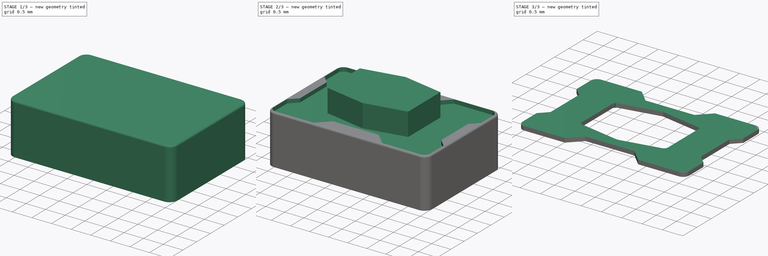
[diagram: build sequence overview — one tinted view per stage of 3, left to right]
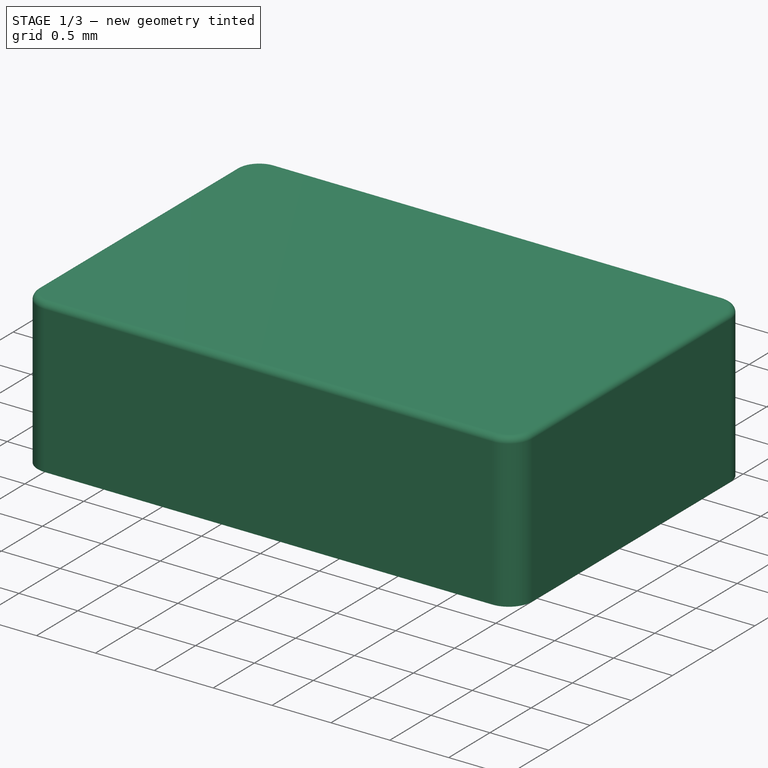
[diagram: stage 1 of 3 — iso view after this stage's code; geometry added in this stage tinted green]
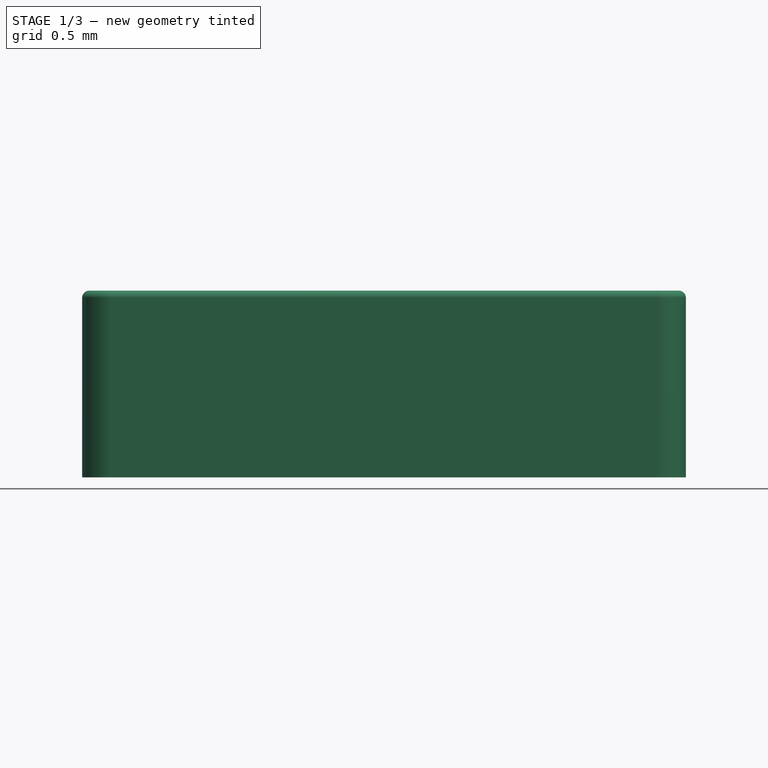
[diagram: stage 1 of 3 — front view after this stage's code; geometry added in this stage tinted green]
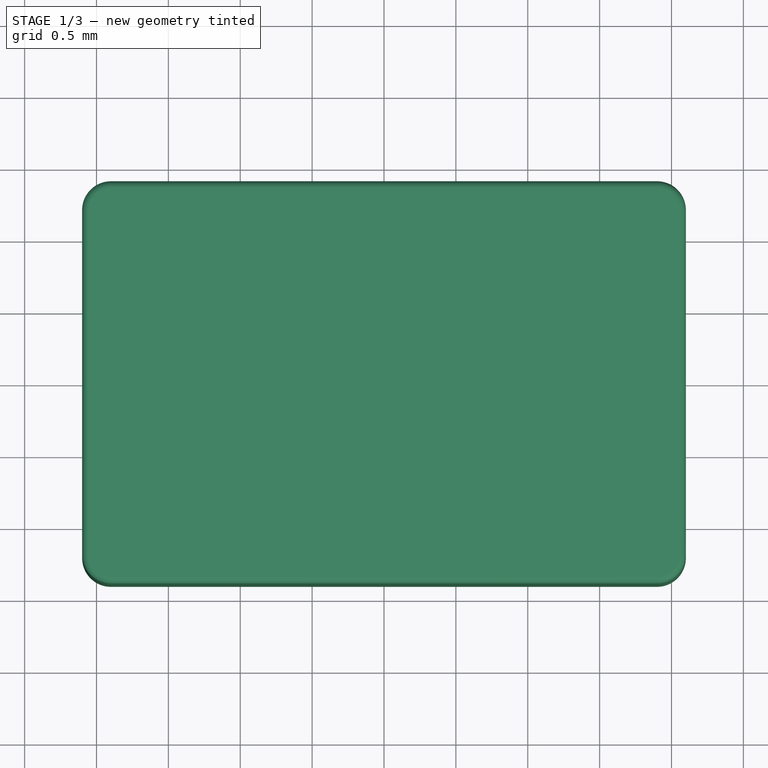
[diagram: stage 1 of 3 — top view after this stage's code; geometry added in this stage tinted green]
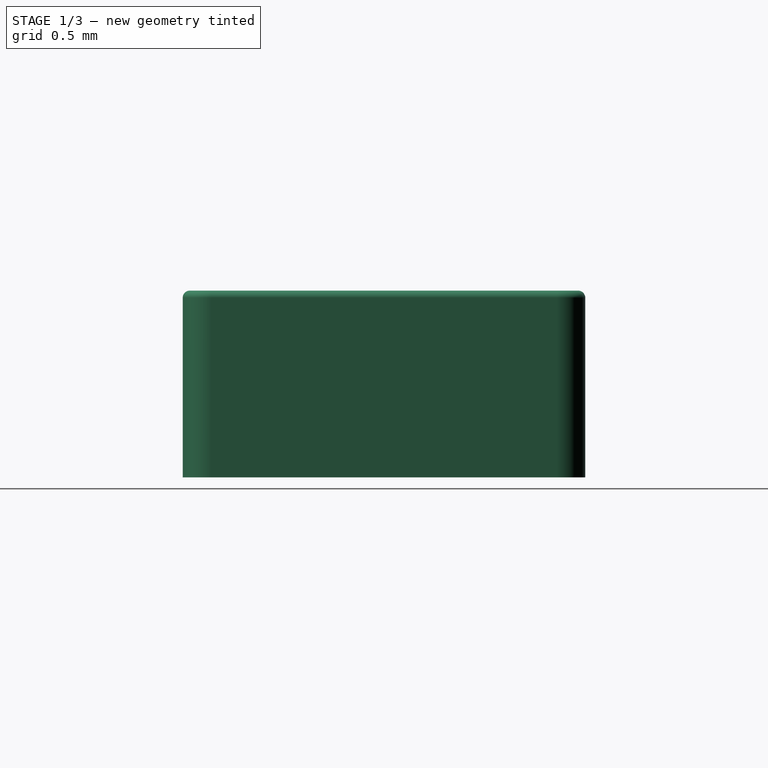
[diagram: stage 1 of 3 — right view after this stage's code; geometry added in this stage tinted green]
FCSTD DOCUMENT  (FreeCAD 0.21R33771 (Git))
Label: pulsador
License: All rights reserved
LicenseURL: https://en.wikipedia.org/wiki/All_rights_reserved
objects: Sketcher::SketchObject×5, PartDesign::Pad×4, PartDesign::Body×3, PartDesign::Fillet×3, PartDesign::SubShapeBinder×2, PartDesign::Pocket×1, App::Part×1
note: 26 computed .brp shape members not serialized (recipe doc carries the construction recipe); baked Part::Feature solids carry a one-line shape summary decoded from their .brp

FEATURE [Sketcher::SketchObject] Sketch
  FullyConstrained = true
  MapMode = 5
  Support = -> [XY_Plane]
  sketch-geometry (12):
    g0: LineSegment StartX=2.3 StartY=1.1 StartZ=0 EndX=2.3 EndY=0.5 EndZ=0
    g1: LineSegment StartX=2.3 StartY=0.5 StartZ=0 EndX=1.7 EndY=0.5 EndZ=0
    g2: LineSegment StartX=1.7 StartY=0.5 StartZ=0 EndX=1.7 EndY=-0.5 EndZ=0
    g3: LineSegment StartX=1.7 StartY=-0.5 StartZ=0 EndX=2.3 EndY=-0.5 EndZ=0
    g4: LineSegment StartX=2.3 StartY=-0.5 StartZ=0 EndX=2.3 EndY=-1.1 EndZ=0
    g5: LineSegment StartX=2.3 StartY=1.1 StartZ=0 EndX=-2.3 EndY=1.1 EndZ=0
    g6: LineSegment StartX=2.3 StartY=-1.1 StartZ=0 EndX=-2.3 EndY=-1.1 EndZ=0
    g7: LineSegment StartX=-2.3 StartY=-1.1 StartZ=0 EndX=-2.3 EndY=-0.5 EndZ=0
    g8: LineSegment StartX=-2.3 StartY=-0.5 StartZ=0 EndX=-1.7 EndY=-0.5 EndZ=0
    g9: LineSegment StartX=-1.7 StartY=-0.5 StartZ=0 EndX=-1.7 EndY=0.5 EndZ=0
    g10: LineSegment StartX=-1.7 StartY=0.5 StartZ=0 EndX=-2.3 EndY=0.5 EndZ=0
    g11: LineSegment StartX=-2.3 StartY=0.5 StartZ=0 EndX=-2.3 EndY=1.1 EndZ=0
  constraints (36):
    c: Vertical(g0)
    c: DistanceY(g0,g0) = 0.6
    c: Coincident(g1,g0)
    c: Horizontal(g1)
    c: Coincident(g2,g1)
    c: Vertical(g2)
    c: Coincident(g3,g2)
    c: Horizontal(g3)
    c: Coincident(g4,g3)
    c: Vertical(g4)
    c: DistanceY(g4,g4) = 0.6
    c: DistanceY(g4,g0) = 2.2
    c: Coincident(g5,g0)
    c: Horizontal(g5)
    c: Coincident(g6,g4)
    c: Horizontal(g6)
    c: Coincident(g7,g6)
    c: Vertical(g7)
    c: Coincident(g8,g7)
    c: Horizontal(g8)
    c: Coincident(g9,g8)
    c: Coincident(g10,g9)
    c: Coincident(g11,g10)
    c: Coincident(g11,g5)
    c: Horizontal(g10)
    c: Vertical(g11)
    c: Vertical(g9)
    c: DistanceY(g8,g2) = 0
    c: DistanceY(g9,g1) = 0
    c: DistanceX(g5,g0) = 4.6
    c: Equal(g5,g6)
    c: DistanceX(g5,g6) = 0
    c: DistanceX(g10,g10) = 0.6
    c: DistanceX(g1,g1) = 0.6
    c: DistanceX(g-1,g0) = 2.3
    c: DistanceY(g-1,g0) = 1.1
FEATURE [PartDesign::Pad] Pad
  Direction = (0,0,1)
  Length = 0.1
  Length2 = 10
  Profile = -> Sketch
  ReferenceAxis = -> Sketch [N_Axis]
  Type = 0
FEATURE [PartDesign::Body] Body
  Group = -> [Sketch,Pad]
  Origin = -> Origin
  Tip = -> Pad
FEATURE [PartDesign::SubShapeBinder] Binder
  BindCopyOnChange = 0
  BindMode = 0
  ClaimChildren = false
  Context = -> Body001 [Binder.]
  Fuse = false
  MakeFace = true
  OffsetFill = false
  OffsetIntersection = false
  OffsetJoinType = 0
  OffsetOpenResult = false
  PartialLoad = false
  Relative = true
  Support = -> [Body]
  _Version = 2
FEATURE [Sketcher::SketchObject] Sketch001
  FullyConstrained = true
  MapMode = 5
  Placement = pos=(0,0,0.1) rot=(0,0,1;0rad)
  Support = -> [Binder]
  sketch-geometry (10):
    g0: ArcOfCircle CenterX=-1.9 CenterY=1.2 CenterZ=0 NormalX=0 NormalY=0 NormalZ=1 AngleXU=0 Radius=0.2 StartAngle=1.5708 EndAngle=3.14159
    g1: LineSegment StartX=-1.9 StartY=1.4 StartZ=0 EndX=1.9 EndY=1.4 EndZ=0
    g2: ArcOfCircle CenterX=1.9 CenterY=1.2 CenterZ=0 NormalX=0 NormalY=0 NormalZ=1 AngleXU=0 Radius=0.2 StartAngle=0 EndAngle=1.5708
    g3: LineSegment StartX=2.1 StartY=1.2 StartZ=0 EndX=2.1 EndY=-1.2 EndZ=0
    g4: ArcOfCircle CenterX=1.9 CenterY=-1.2 CenterZ=0 NormalX=0 NormalY=0 NormalZ=1 AngleXU=0 Radius=0.2 StartAngle=4.71239 EndAngle=6.28319
    g5: LineSegment StartX=1.9 StartY=-1.4 StartZ=0 EndX=-1.9 EndY=-1.4 EndZ=0
    g6: ArcOfCircle CenterX=-1.9 CenterY=-1.2 CenterZ=0 NormalX=0 NormalY=0 NormalZ=1 AngleXU=0 Radius=0.2 StartAngle=3.14159 EndAngle=4.71239
    g7: LineSegment StartX=-2.1 StartY=-1.2 StartZ=0 EndX=-2.1 EndY=1.2 EndZ=0
    g8: GeomPoint X=-2.1 Y=1.4 Z=0
    g9: GeomPoint X=2.1 Y=-1.4 Z=0
  constraints (24):
    c: Tangent(g0,g1) = 1.5708
    c: Tangent(g1,g2) = 1.5708
    c: Tangent(g2,g3) = 1.5708
    c: Tangent(g3,g4) = 1.5708
    c: Tangent(g4,g5) = 1.5708
    c: Tangent(g5,g6) = 1.5708
    c: Tangent(g6,g7) = 1.5708
    c: Tangent(g7,g0) = 1.5708
    c: Horizontal(g1)
    c: Horizontal(g5)
    c: Vertical(g3)
    c: Vertical(g7)
    c: Equal(g0,g2)
    c: Equal(g2,g4)
    c: Equal(g4,g6)
    c: PointOnObject(g8,g1)
    c: PointOnObject(g8,g7)
    c: PointOnObject(g9,g3)
    c: PointOnObject(g9,g5)
    c: DistanceX(g0,g2) = 4.2
    c: DistanceX(g-1,g2) = 2.1
    c: Radius(g0) = 0.2
    c: DistanceY(g4,g1) = 2.8
    c: DistanceY(g-1,g1) = 1.4
FEATURE [PartDesign::Pad] Pad001
  Direction = (0,0,1)
  Length = 1.3
  Length2 = 10
  Profile = -> Sketch001
  ReferenceAxis = -> Sketch001 [N_Axis]
  Type = 0
FEATURE [PartDesign::Fillet] Fillet
  Base = -> Pad001 [Edge13]
  BaseFeature = -> Pad001
  Radius = 0.05
  SupportTransform = false
  UseAllEdges = false
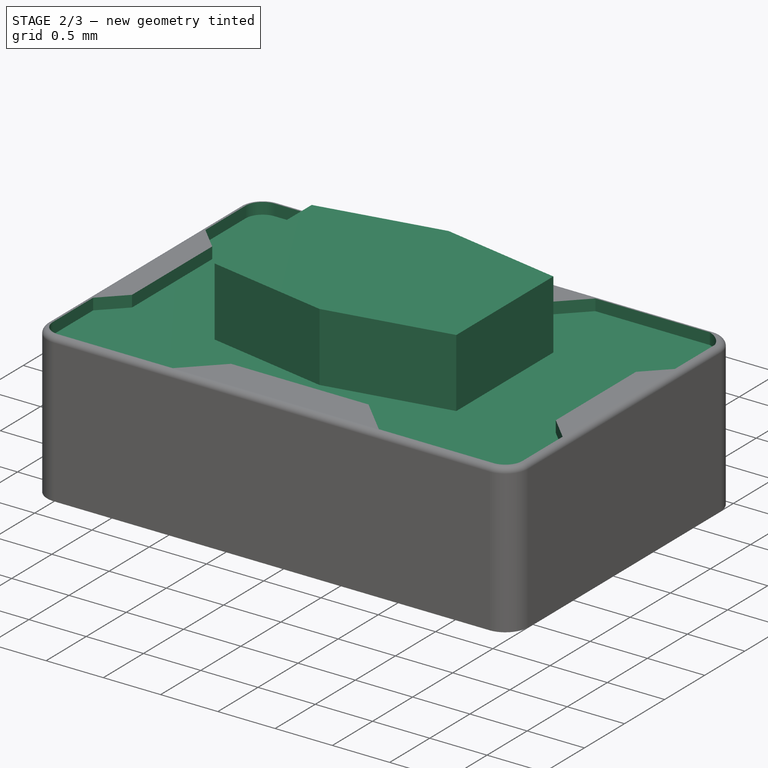
[diagram: stage 2 of 3 — iso view after this stage's code; geometry added in this stage tinted green]
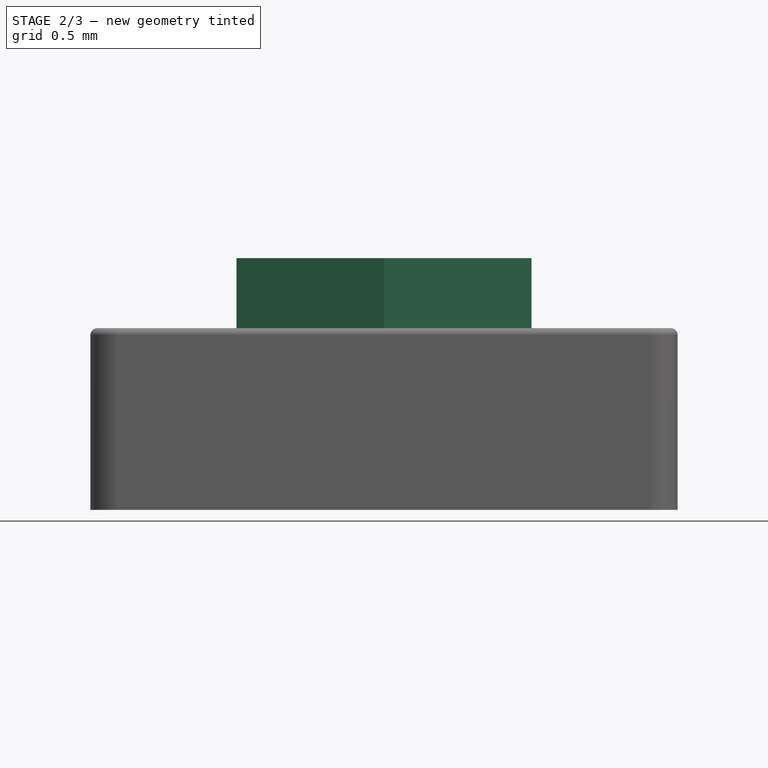
[diagram: stage 2 of 3 — front view after this stage's code; geometry added in this stage tinted green]
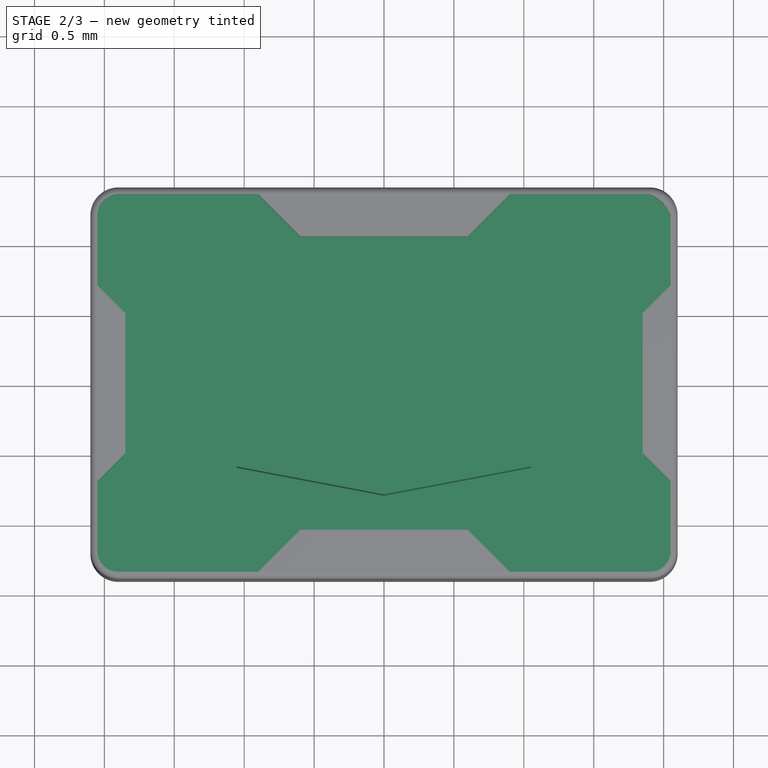
[diagram: stage 2 of 3 — top view after this stage's code; geometry added in this stage tinted green]
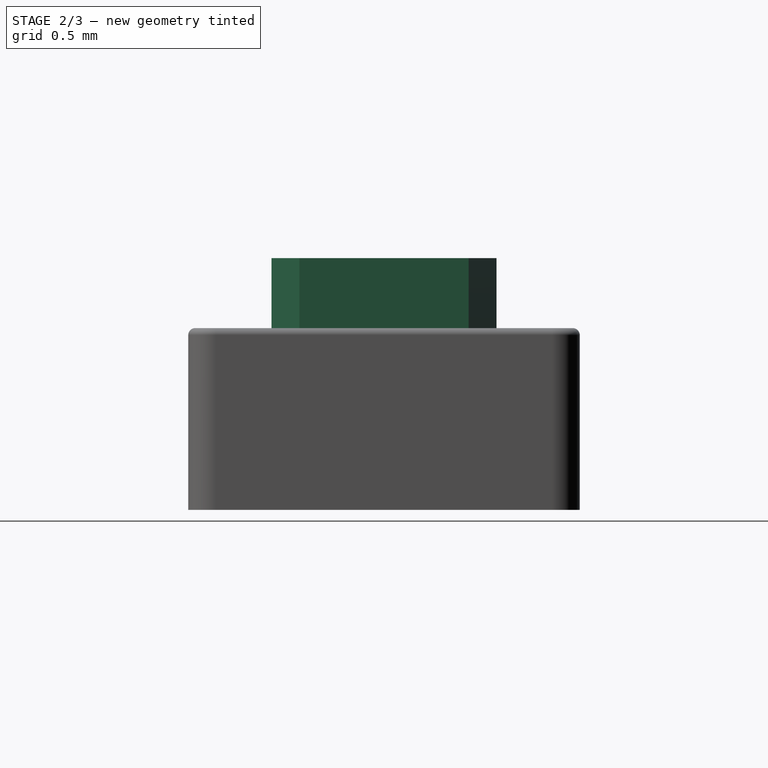
[diagram: stage 2 of 3 — right view after this stage's code; geometry added in this stage tinted green]
FEATURE [Sketcher::SketchObject] Sketch002
  ExternalGeometry = -> [Fillet]
  FullyConstrained = false
  MapMode = 5
  Placement = pos=(0,0,1.4) rot=(0,0,1;0rad)
  Support = -> [Fillet]
  sketch-geometry (24):
    g0: LineSegment StartX=-1.9 StartY=1.35 StartZ=0 EndX=-0.9 EndY=1.35 EndZ=0
    g1: LineSegment StartX=1.9 StartY=1.35 StartZ=0 EndX=0.9 EndY=1.35 EndZ=0
    g2: LineSegment StartX=-1.9 StartY=-1.35 StartZ=0 EndX=-0.9 EndY=-1.35 EndZ=0
    g3: LineSegment StartX=1.9 StartY=-1.35 StartZ=0 EndX=0.9 EndY=-1.35 EndZ=0
    g4: LineSegment StartX=2.05 StartY=1.2 StartZ=0 EndX=2.05 EndY=0.7 EndZ=0
    g5: LineSegment StartX=2.05 StartY=-1.2 StartZ=0 EndX=2.05 EndY=-0.7 EndZ=0
    g6: LineSegment StartX=-2.05 StartY=1.2 StartZ=0 EndX=-2.05 EndY=0.7 EndZ=0
    g7: LineSegment StartX=-2.05 StartY=-1.2 StartZ=0 EndX=-2.05 EndY=-0.7 EndZ=0
    g8: LineSegment StartX=-1.85 StartY=0.5 StartZ=0 EndX=-1.85 EndY=-0.5 EndZ=0
    g9: LineSegment StartX=1.85 StartY=0.5 StartZ=0 EndX=1.85 EndY=-0.5 EndZ=0
    g10: LineSegment StartX=1.85 StartY=-0.5 StartZ=0 EndX=2.05 EndY=-0.7 EndZ=0
    g11: LineSegment StartX=1.85 StartY=0.5 StartZ=0 EndX=2.05 EndY=0.7 EndZ=0
    g12: LineSegment StartX=0.9 StartY=1.35 StartZ=0 EndX=0.6 EndY=1.05 EndZ=0
    g13: LineSegment StartX=0.6 StartY=1.05 StartZ=0 EndX=-0.6 EndY=1.05 EndZ=0
    g14: LineSegment StartX=-0.9 StartY=1.35 StartZ=0 EndX=-0.6 EndY=1.05 EndZ=0
    g15: LineSegment StartX=-2.05 StartY=0.7 StartZ=0 EndX=-1.85 EndY=0.5 EndZ=0
    g16: LineSegment StartX=-2.05 StartY=-0.7 StartZ=0 EndX=-1.85 EndY=-0.5 EndZ=0
    g17: LineSegment StartX=-0.9 StartY=-1.35 StartZ=0 EndX=-0.6 EndY=-1.05 EndZ=0
    g18: LineSegment StartX=-0.6 StartY=-1.05 StartZ=0 EndX=0.6 EndY=-1.05 EndZ=0
    g19: LineSegment StartX=0.6 StartY=-1.05 StartZ=0 EndX=0.9 EndY=-1.35 EndZ=0
    g20: ArcOfCircle CenterX=-1.9 CenterY=1.2 CenterZ=0 NormalX=0 NormalY=0 NormalZ=1 AngleXU=0 Radius=0.15 StartAngle=1.5708 EndAngle=3.14159
    g21: ArcOfCircle CenterX=1.81021 CenterY=1.11021 CenterZ=0 NormalX=0 NormalY=0 NormalZ=1 AngleXU=0 Radius=0.256053 StartAngle=0.358296 EndAngle=1.2125
    g22: ArcOfCircle CenterX=1.9 CenterY=-1.2 CenterZ=0 NormalX=0 NormalY=0 NormalZ=1 AngleXU=0 Radius=0.15 StartAngle=4.71239 EndAngle=6.28319
    g23: ArcOfCircle CenterX=-1.9 CenterY=-1.2 CenterZ=0 NormalX=0 NormalY=0 NormalZ=1 AngleXU=0 Radius=0.15 StartAngle=3.14159 EndAngle=4.71239
  constraints (65):
    c: Coincident(g0,g-3)
    c: Horizontal(g0)
    c: Coincident(g1,g-3)
    c: Horizontal(g1)
    c: Coincident(g2,g-8)
    c: Horizontal(g2)
    c: Coincident(g3,g-7)
    c: Horizontal(g3)
    c: Coincident(g4,g-4)
    c: Vertical(g4)
    c: Coincident(g5,g-6)
    c: Vertical(g5)
    c: Coincident(g6,g-5)
    c: Vertical(g6)
    c: Coincident(g7,g-8)
    c: Vertical(g8)
    c: Vertical(g9)
    c: Coincident(g10,g9)
    c: Coincident(g10,g5)
    c: Coincident(g11,g9)
    c: Coincident(g11,g4)
    c: Coincident(g12,g1)
    c: Coincident(g13,g12)
    c: Horizontal(g13)
    c: Coincident(g14,g0)
    c: Coincident(g14,g13)
    c: Coincident(g15,g6)
    c: Coincident(g15,g8)
    c: Coincident(g16,g7)
    c: Coincident(g16,g8)
    c: Coincident(g17,g2)
    c: Coincident(g18,g17)
    c: Horizontal(g18)
    c: Coincident(g19,g18)
    c: Coincident(g19,g3)
    c: Coincident(g20,g0)
    c: Coincident(g20,g6)
    c: Coincident(g21,g1)
    c: Coincident(g21,g4)
    c: Coincident(g22,g-6)
    c: Coincident(g22,g5)
    c: Coincident(g23,g-8)
    c: Coincident(g23,g7)
    c: Coincident(g23,g2)
    c: DistanceX(g0,g0) = 1
    c: Equal(g0,g1)
    c: Equal(g0,g2)
    c: Equal(g0,g3)
    c: DistanceY(g6,g6) = 0.5
    c: Equal(g6,g4)
    c: Equal(g6,g7)
    c: Equal(g6,g5)
    c: Vertical(g7)
    c: DistanceX(g13,g13) = 1.2
    c: Equal(g13,g18)
    c: DistanceX(g0,g13) = 0.3
    c: DistanceY(g13,g0) = 0.3
    c: DistanceX(g2,g17) = 0.3
    c: DistanceY(g2,g17) = 0.3
    c: DistanceY(g8,g8) = 1
    c: DistanceY(g7,g8) = 0.2
    c: DistanceX(g7,g8) = 0.2
    c: DistanceY(g9,g9) = 1
    c: DistanceX(g9,g4) = 0.2
    c: DistanceY(g9,g4) = 0.2
FEATURE [PartDesign::Pocket] Pocket
  BaseFeature = -> Fillet
  Direction = (0,0,-1)
  Length = 0.1
  Length2 = 5
  Profile = -> Sketch002
  ReferenceAxis = -> Sketch002 [N_Axis]
  Type = 0
FEATURE [PartDesign::Body] Body002
  Group = -> [Binder001,Sketch003,Pad002,Fillet001]
  Origin = -> Origin002
  Tip = -> Fillet001
FEATURE [Sketcher::SketchObject] Sketch004
  FullyConstrained = true
  MapMode = 5
  Placement = pos=(0,0,1.3) rot=(0,0,1;0rad)
  Support = -> [Pocket]
  sketch-geometry (6):
    g0: LineSegment StartX=-1.055 StartY=0.605 StartZ=0 EndX=-1.055 EndY=-0.605 EndZ=0
    g1: LineSegment StartX=-1.055 StartY=-0.605 StartZ=0 EndX=0 EndY=-0.805 EndZ=0
    g2: LineSegment StartX=0 StartY=-0.805 StartZ=0 EndX=1.055 EndY=-0.605 EndZ=0
    g3: LineSegment StartX=1.055 StartY=-0.605 StartZ=0 EndX=1.055 EndY=0.605 EndZ=0
    g4: LineSegment StartX=1.055 StartY=0.605 StartZ=0 EndX=0 EndY=0.805 EndZ=0
    g5: LineSegment StartX=0 StartY=0.805 StartZ=0 EndX=-1.055 EndY=0.605 EndZ=0
  constraints (18):
    c: Vertical(g0)
    c: Coincident(g1,g0)
    c: PointOnObject(g1,g-2)
    c: Coincident(g2,g1)
    c: Coincident(g3,g2)
    c: Vertical(g3)
    c: Coincident(g4,g3)
    c: PointOnObject(g4,g-2)
    c: Coincident(g5,g4)
    c: Coincident(g5,g0)
    c: DistanceY(g1,g4) = 1.61
    c: DistanceX(g0,g2) = 2.11
    c: DistanceX(g1,g2) = 1.055
    c: DistanceY(g3,g4) = 0.2
    c: DistanceY(g0,g4) = 0.2
    c: DistanceY(g1,g2) = 0.2
    c: DistanceY(g1,g0) = 0.2
    c: DistanceY(g-1,g4) = 0.805
FEATURE [PartDesign::Pad] Pad003
  BaseFeature = -> Pocket
  Direction = (0,0,1)
  Length = 0.6
  Length2 = 10
  Profile = -> Sketch004
  ReferenceAxis = -> Sketch004 [N_Axis]
  Type = 0
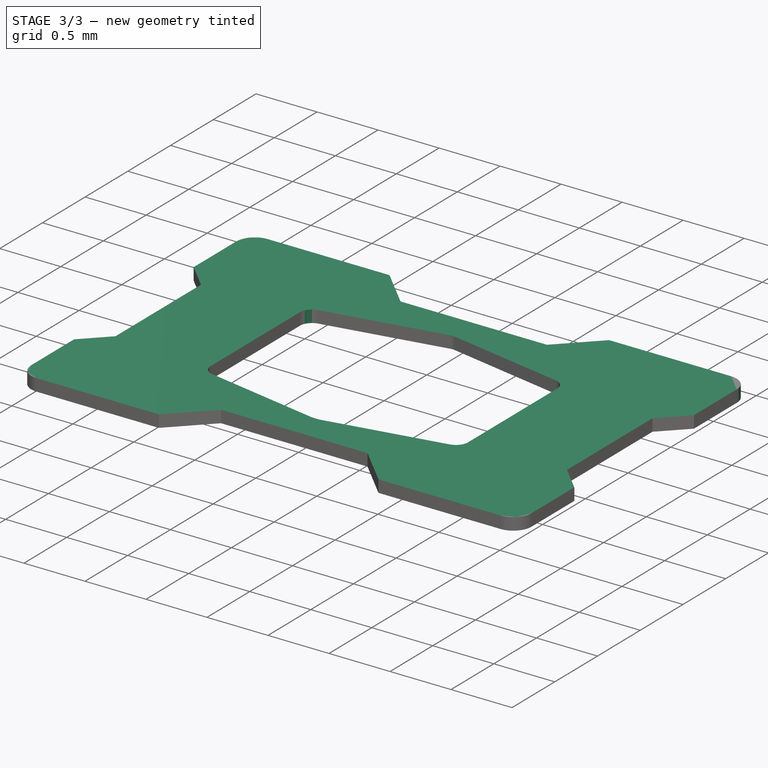
[diagram: stage 3 of 3 — iso view after this stage's code; geometry added in this stage tinted green]
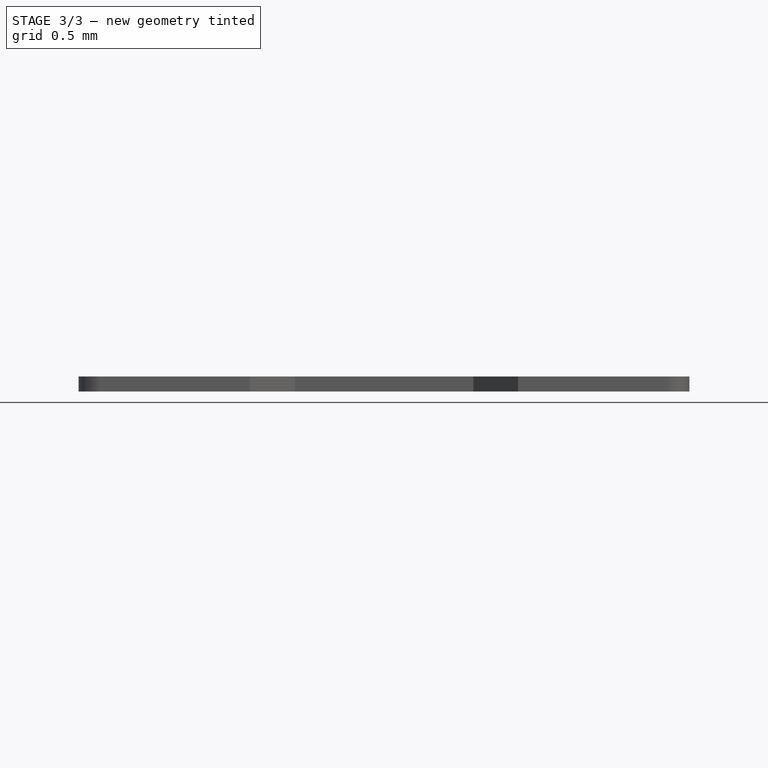
[diagram: stage 3 of 3 — front view after this stage's code; geometry added in this stage tinted green]
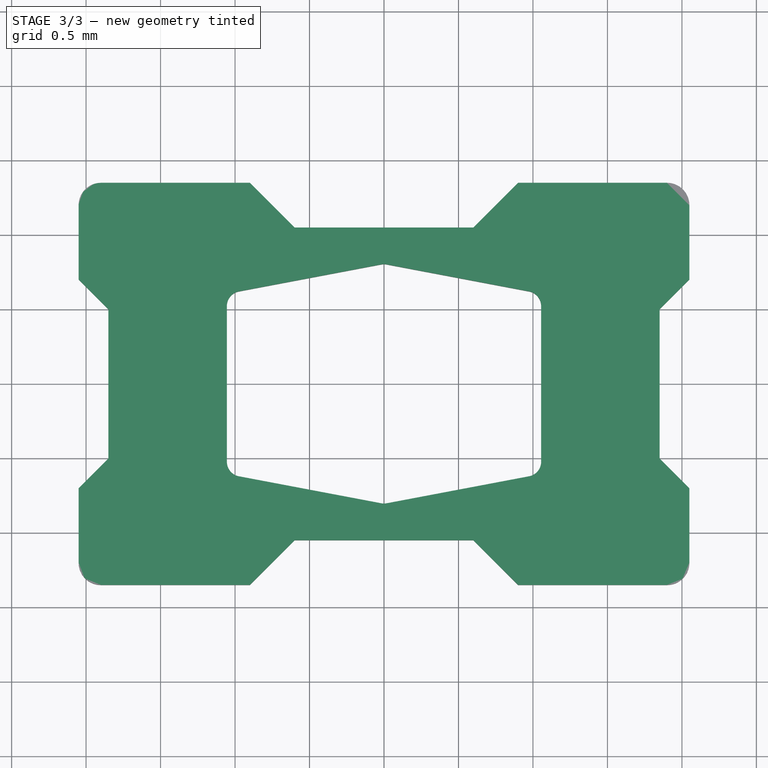
[diagram: stage 3 of 3 — top view after this stage's code; geometry added in this stage tinted green]
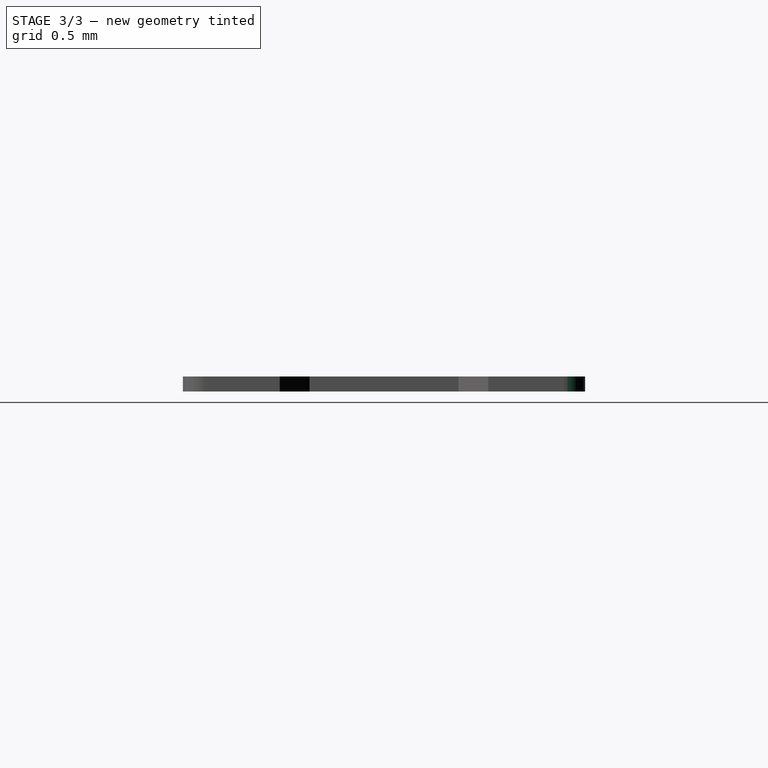
[diagram: stage 3 of 3 — right view after this stage's code; geometry added in this stage tinted green]
FEATURE [PartDesign::SubShapeBinder] Binder001
  BindCopyOnChange = 0
  BindMode = 0
  ClaimChildren = false
  Context = -> Body002 [Binder001.]
  Fuse = false
  MakeFace = true
  OffsetFill = false
  OffsetIntersection = false
  OffsetJoinType = 0
  OffsetOpenResult = false
  PartialLoad = false
  Relative = true
  Support = -> [Body001]
  _Version = 2
FEATURE [Sketcher::SketchObject] Sketch003
  ExternalGeometry = -> [Binder001]
  FullyConstrained = false
  MapMode = 5
  Placement = pos=(0,1.35,0) rot=(1,0,0;1.5708rad)
  Support = -> [Binder001]
  sketch-geometry (30):
    g0: LineSegment StartX=-0.6 StartY=1.05 StartZ=0 EndX=0.6 EndY=1.05 EndZ=0
    g1: LineSegment StartX=0.6 StartY=1.05 StartZ=0 EndX=0.9 EndY=1.35 EndZ=0
    g2: LineSegment StartX=0.9 StartY=1.35 StartZ=0 EndX=1.9 EndY=1.35 EndZ=0
    g3: LineSegment StartX=2.05 StartY=1.2 StartZ=0 EndX=2.05 EndY=0.7 EndZ=0
    g4: LineSegment StartX=2.05 StartY=0.7 StartZ=0 EndX=1.85 EndY=0.5 EndZ=0
    g5: LineSegment StartX=1.85 StartY=0.5 StartZ=0 EndX=1.85 EndY=-0.5 EndZ=0
    g6: LineSegment StartX=1.85 StartY=-0.5 StartZ=0 EndX=2.05 EndY=-0.7 EndZ=0
    g7: LineSegment StartX=2.05 StartY=-0.7 StartZ=0 EndX=2.05 EndY=-1.2 EndZ=0
    g8: LineSegment StartX=1.9 StartY=-1.35 StartZ=0 EndX=0.9 EndY=-1.35 EndZ=0
    g9: LineSegment StartX=0.9 StartY=-1.35 StartZ=0 EndX=0.6 EndY=-1.05 EndZ=0
    g10: LineSegment StartX=0.6 StartY=-1.05 StartZ=0 EndX=-0.6 EndY=-1.05 EndZ=0
    g11: LineSegment StartX=-0.6 StartY=-1.05 StartZ=0 EndX=-0.9 EndY=-1.35 EndZ=0
    g12: LineSegment StartX=-0.9 StartY=-1.35 StartZ=0 EndX=-1.9 EndY=-1.35 EndZ=0
    g13: LineSegment StartX=-2.05 StartY=-1.2 StartZ=0 EndX=-2.05 EndY=-0.7 EndZ=0
    g14: LineSegment StartX=-2.05 StartY=-0.7 StartZ=0 EndX=-1.85 EndY=-0.5 EndZ=0
    g15: LineSegment StartX=-1.85 StartY=-0.5 StartZ=0 EndX=-1.85 EndY=0.5 EndZ=0
    g16: LineSegment StartX=-1.85 StartY=0.5 StartZ=0 EndX=-2.05 EndY=0.7 EndZ=0
    g17: LineSegment StartX=-2.05 StartY=0.7 StartZ=0 EndX=-2.05 EndY=1.2 EndZ=0
    g18: ArcOfCircle CenterX=-1.9 CenterY=1.2 CenterZ=0 NormalX=0 NormalY=0 NormalZ=1 AngleXU=0 Radius=0.15 StartAngle=1.5708 EndAngle=3.14159
    g19: ArcOfCircle CenterX=1.9 CenterY=1.2 CenterZ=0 NormalX=0 NormalY=0 NormalZ=1 AngleXU=0 Radius=0.15 StartAngle=0 EndAngle=1.5708
    g20: ArcOfCircle CenterX=1.9 CenterY=-1.2 CenterZ=0 NormalX=0 NormalY=0 NormalZ=1 AngleXU=0 Radius=0.15 StartAngle=4.71239 EndAngle=6.28319
    g21: ArcOfCircle CenterX=-1.9 CenterY=-1.2 CenterZ=0 NormalX=0 NormalY=0 NormalZ=1 AngleXU=0 Radius=0.15 StartAngle=3.14159 EndAngle=4.71239
    g22: LineSegment StartX=-1.9 StartY=1.35 StartZ=0 EndX=-0.9 EndY=1.35 EndZ=0
    g23: LineSegment StartX=-0.9 StartY=1.35 StartZ=0 EndX=-0.6 EndY=1.05 EndZ=0
    g24: LineSegment StartX=-1.055 StartY=0.605 StartZ=0 EndX=-1.055 EndY=-0.605 EndZ=0
    g25: LineSegment StartX=-1.055 StartY=-0.605 StartZ=0 EndX=0 EndY=-0.805 EndZ=0
    g26: LineSegment StartX=0 StartY=-0.805 StartZ=0 EndX=1.055 EndY=-0.605 EndZ=0
    g27: LineSegment StartX=1.055 StartY=-0.605 StartZ=0 EndX=1.055 EndY=0.605 EndZ=0
    g28: LineSegment StartX=1.055 StartY=0.605 StartZ=0 EndX=0 EndY=0.805 EndZ=0
    g29: LineSegment StartX=0 StartY=0.805 StartZ=0 EndX=-1.055 EndY=0.605 EndZ=0
  constraints (69):
    c: Coincident(g0,g-25)
    c: Coincident(g0,g-4)
    c: Coincident(g1,g0)
    c: Coincident(g1,g-5)
    c: Coincident(g2,g1)
    c: Coincident(g2,g-5)
    c: Coincident(g3,g-6)
    c: Coincident(g3,g-7)
    c: Coincident(g4,g3)
    c: Coincident(g4,g-8)
    c: Coincident(g5,g4)
    c: Coincident(g5,g-9)
    c: Coincident(g6,g5)
    c: Coincident(g6,g-10)
    c: Coincident(g7,g6)
    c: Coincident(g7,g-11)
    c: Coincident(g8,g-12)
    c: Coincident(g8,g-13)
    c: Coincident(g9,g8)
    c: Coincident(g9,g-14)
    c: Coincident(g10,g9)
    c: Coincident(g10,g-15)
    c: Coincident(g11,g10)
    c: Coincident(g11,g-16)
    c: Coincident(g12,g11)
    c: Coincident(g12,g-17)
    c: Coincident(g13,g-18)
    c: Coincident(g13,g-19)
    c: Coincident(g14,g13)
    c: Coincident(g14,g-20)
    c: Coincident(g15,g14)
    c: Coincident(g15,g-21)
    c: Coincident(g16,g15)
    c: Coincident(g16,g-22)
    c: Coincident(g17,g16)
    c: Coincident(g17,g-23)
    c: Coincident(g18,g-23)
    c: Coincident(g18,g17)
    c: Coincident(g19,g-26)
    c: Coincident(g19,g2)
    c: Coincident(g19,g3)
    c: Coincident(g20,g-11)
    c: Coincident(g20,g7)
    c: Coincident(g21,g-17)
    c: Coincident(g21,g13)
    c: Coincident(g21,g12)
    c: Coincident(g22,g18)
    c: Coincident(g22,g-25)
    c: Horizontal(g22)
    c: Coincident(g23,g22)
    c: Coincident(g23,g0)
    c: Vertical(g24)
    c: Coincident(g25,g24)
    c: PointOnObject(g25,g-2)
    c: Coincident(g26,g25)
    c: Coincident(g27,g26)
    c: Coincident(g28,g27)
    c: PointOnObject(g28,g-2)
    c: Coincident(g29,g28)
    c: Coincident(g29,g24)
    c: DistanceY(g25,g28) = 1.61
    c: Vertical(g27)
    c: DistanceX(g24,g26) = 2.11
    c: DistanceY(g-1,g28) = 0.805
    c: DistanceY(g27,g28) = 0.2
    c: DistanceY(g25,g26) = 0.2
    c: DistanceY(g25,g24) = 0.2
    c: DistanceY(g24,g28) = 0.2
    c: DistanceX(g25,g26) = 1.055
FEATURE [PartDesign::Pad] Pad002
  Direction = (0,0,1)
  Length = 0.1
  Length2 = 10
  Profile = -> Sketch003
  ReferenceAxis = -> Sketch003 [N_Axis]
  Type = 0
FEATURE [PartDesign::Fillet] Fillet001
  Base = -> Pad002 [Edge86,Edge73,Edge83,Edge74,Edge77,Edge80]
  BaseFeature = -> Pad002
  Radius = 0.1
  SupportTransform = false
  UseAllEdges = false
FEATURE [PartDesign::Fillet] Fillet002
  Base = -> Pad003 [Edge116,Edge118,Edge127,Edge125,Edge126,Edge123,Edge124,Edge121,Face54,Edge122,Edge119,Edge117]
  BaseFeature = -> Pad003
  Radius = 0.1
  SupportTransform = false
  UseAllEdges = false
FEATURE [PartDesign::Body] Body001
  Group = -> [Binder,Sketch001,Pad001,Fillet,Sketch002,Pocket,Sketch004,Pad003,Fillet002]
  Origin = -> Origin001
  Tip = -> Fillet002
FEATURE [App::Part] Part
  Group = -> [Body,Body001,Body002]
  Origin = -> Origin003
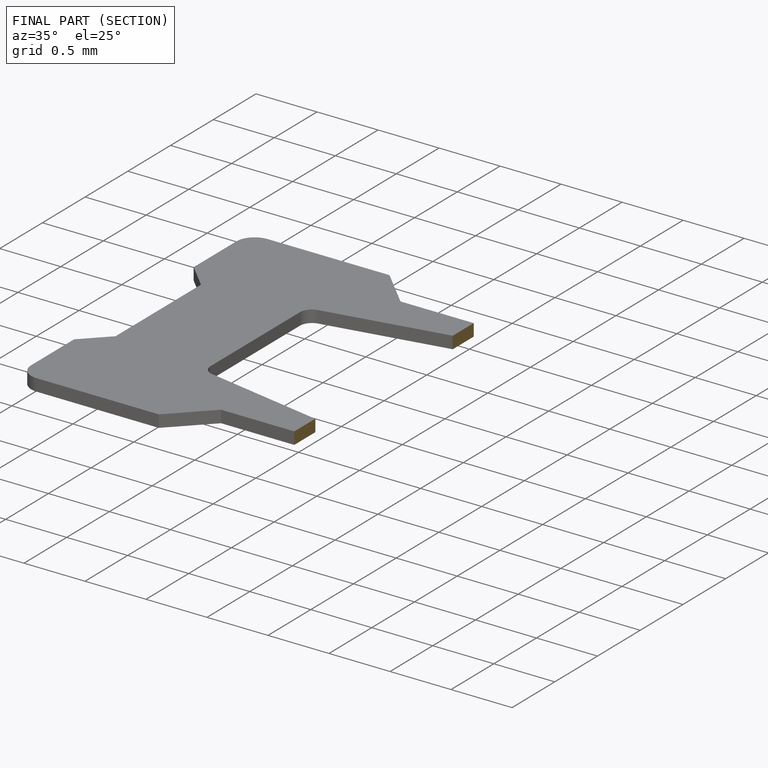
[diagram: finished part — half-section view (interior)]
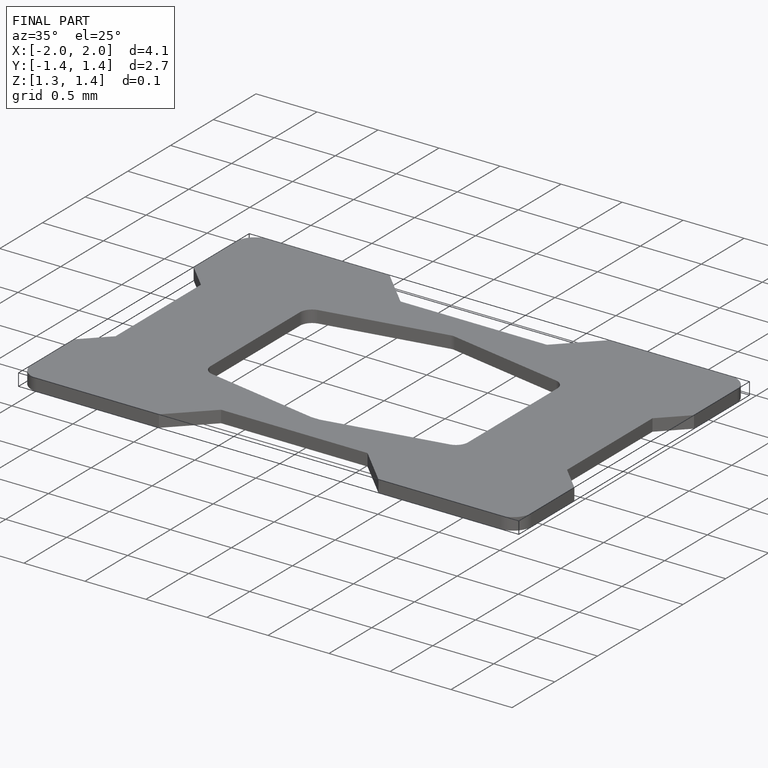
[diagram: finished part — iso view with bounding-box wireframe]
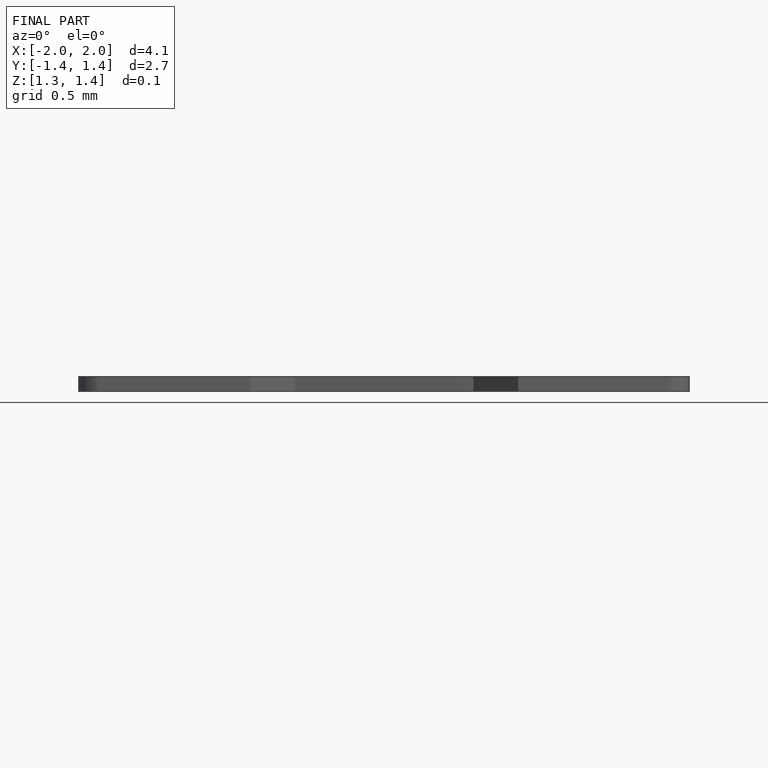
[diagram: finished part — front view with bounding-box wireframe]
